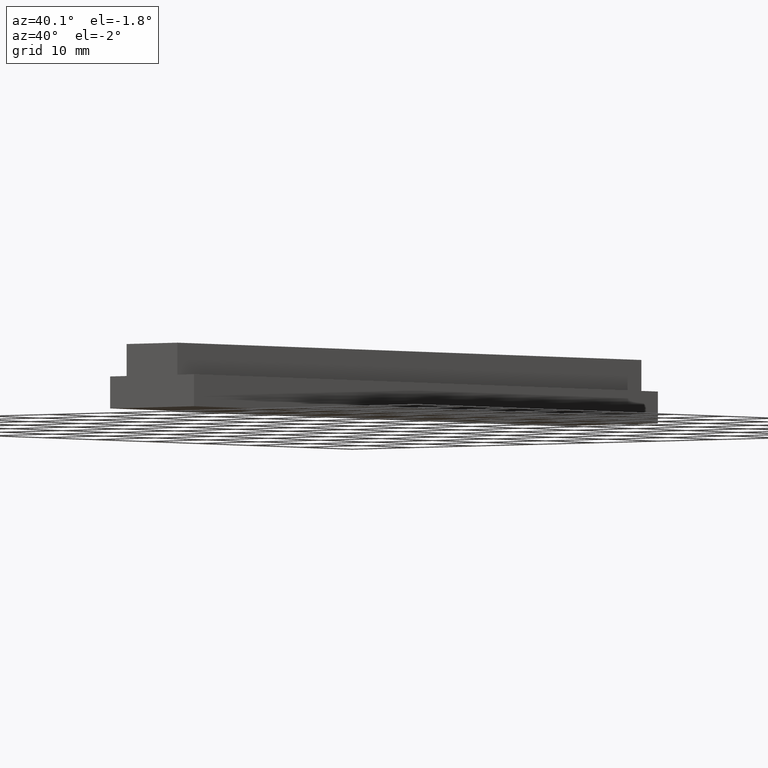
[diagram: clean part render]
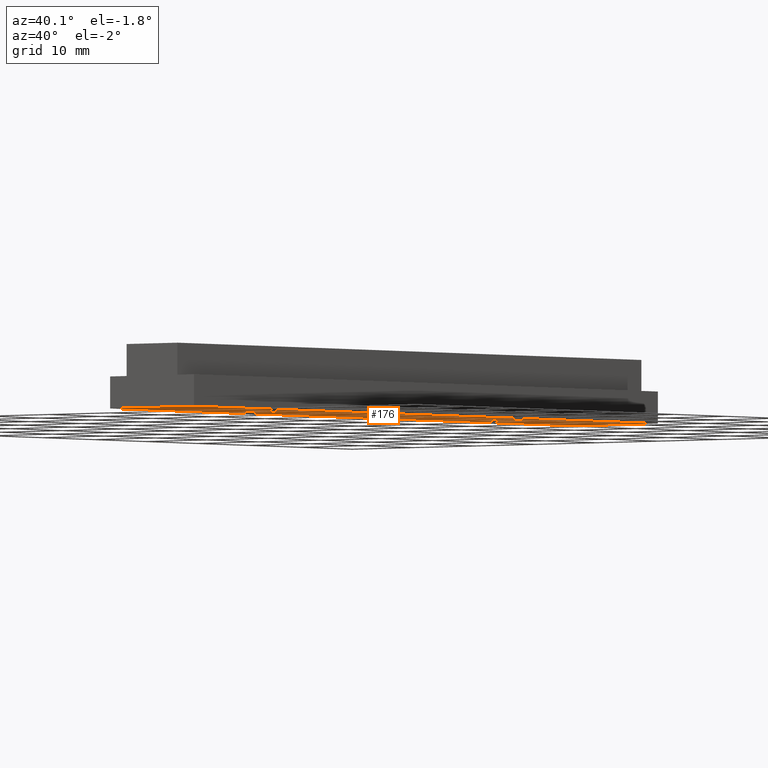
[diagram: same view with one face highlighted and labeled with its STEP entity id]
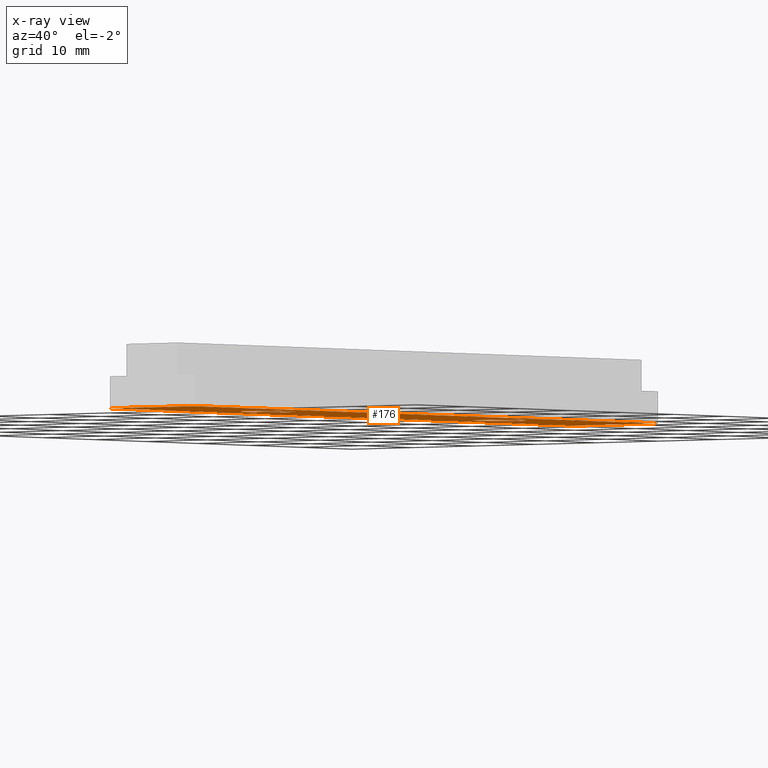
[diagram: x-ray of the same camera — body ghosted, the highlighted face saturated]
A machine part, auxiliary view. The second image highlights one B-rep face of the part: STEP entity #176.
The next image is the same camera in x-ray: the body ghosted, the highlighted face saturated — about 0% of this face is hidden behind the body in this view.
In plain terms, the highlighted planar face has unit normal (0, 0, -1).
Its self-contained STEP definition (entity closure, byte-faithful):
#18=CARTESIAN_POINT('',(0.0,19.100000000000001,-1.776357E-015));
#19=VERTEX_POINT('',#18);
#26=CARTESIAN_POINT('',(0.0,25.899999999999999,-1.776357E-015));
#27=VERTEX_POINT('',#26);
#28=CARTESIAN_POINT('',(0.0,22.500000000000000,-1.776357E-015));
#29=DIRECTION('',(0.0,-6.123234E-017,-1.0));
#30=DIRECTION('',(0.0,1.0,-6.123234E-017));
#31=AXIS2_PLACEMENT_3D('',#28,#29,#30);
#32=CIRCLE('',#31,3.400000000000001);
#33=EDGE_CURVE('',#19,#27,#32,.T.);
#60=CARTESIAN_POINT('',(0.0,64.100000000000023,-3.552714E-015));
#61=VERTEX_POINT('',#60);
#68=CARTESIAN_POINT('',(0.0,70.900000000000006,-3.552714E-015));
#69=VERTEX_POINT('',#68);
#70=CARTESIAN_POINT('',(0.0,67.500000000000000,-3.552714E-015));
#71=DIRECTION('',(0.0,-6.123234E-017,-1.0));
#72=DIRECTION('',(0.0,1.0,-6.123234E-017));
#73=AXIS2_PLACEMENT_3D('',#70,#71,#72);
#74=CIRCLE('',#73,3.400000000000001);
#75=EDGE_CURVE('',#61,#69,#74,.T.);
#93=CARTESIAN_POINT('',(-6.849999999999994,0.0,0.0));
#94=VERTEX_POINT('',#93);
#109=CARTESIAN_POINT('',(-6.849999999999994,90.0,-5.329071E-015));
#110=VERTEX_POINT('',#109);
#117=CARTESIAN_POINT('',(-6.849999999999994,90.0,-5.329071E-015));
#118=DIRECTION('',(0.0,-1.0,0.0));
#119=VECTOR('',#118,90.0);
#120=LINE('',#117,#119);
#121=EDGE_CURVE('',#110,#94,#120,.T.);
#126=CARTESIAN_POINT('',(-7.534999999999997,-4.499999999999999,0.0));
#127=DIRECTION('',(0.0,0.0,-1.0));
#128=DIRECTION('',(0.0,1.0,0.0));
#129=AXIS2_PLACEMENT_3D('',#126,#127,#128);
#130=PLANE('',#129);
#131=CARTESIAN_POINT('',(6.849999999999998,0.0,0.0));
#132=VERTEX_POINT('',#131);
#133=CARTESIAN_POINT('',(-6.849999999999994,0.0,0.0));
#134=DIRECTION('',(1.0,0.0,0.0));
#135=VECTOR('',#134,13.699999999999996);
#136=LINE('',#133,#135);
#137=EDGE_CURVE('',#94,#132,#136,.T.);
#138=ORIENTED_EDGE('',*,*,#137,.F.);
#139=ORIENTED_EDGE('',*,*,#121,.F.);
#140=CARTESIAN_POINT('',(6.849999999999998,90.0,-5.329071E-015));
#141=VERTEX_POINT('',#140);
#142=CARTESIAN_POINT('',(-6.849999999999994,90.0,-5.329071E-015));
#143=DIRECTION('',(1.0,0.0,0.0));
#144=VECTOR('',#143,13.699999999999996);
#145=LINE('',#142,#144);
#146=EDGE_CURVE('',#110,#141,#145,.T.);
#147=ORIENTED_EDGE('',*,*,#146,.T.);
#148=CARTESIAN_POINT('',(6.849999999999998,90.0,-5.329071E-015));
#149=DIRECTION('',(0.0,-1.0,0.0));
#150=VECTOR('',#149,90.0);
#151=LINE('',#148,#150);
#152=EDGE_CURVE('',#141,#132,#151,.T.);
#153=ORIENTED_EDGE('',*,*,#152,.T.);
#154=EDGE_LOOP('',(#138,#139,#147,#153));
#155=FACE_OUTER_BOUND('',#154,.T.);
#156=CARTESIAN_POINT('',(0.0,67.500000000000000,-3.552714E-015));
#157=DIRECTION('',(0.0,-6.123234E-017,-1.0));
#158=DIRECTION('',(0.0,1.0,-6.123234E-017));
#159=AXIS2_PLACEMENT_3D('',#156,#157,#158);
#160=CIRCLE('',#159,3.400000000000001);
#161=EDGE_CURVE('',#69,#61,#160,.T.);
#162=ORIENTED_EDGE('',*,*,#161,.F.);
#163=ORIENTED_EDGE('',*,*,#75,.F.);
#164=EDGE_LOOP('',(#162,#163));
#165=FACE_BOUND('',#164,.T.);
#166=CARTESIAN_POINT('',(0.0,22.500000000000000,-1.776357E-015));
#167=DIRECTION('',(0.0,-6.123234E-017,-1.0));
#168=DIRECTION('',(0.0,1.0,-6.123234E-017));
#169=AXIS2_PLACEMENT_3D('',#166,#167,#168);
#170=CIRCLE('',#169,3.400000000000001);
#171=EDGE_CURVE('',#27,#19,#170,.T.);
#172=ORIENTED_EDGE('',*,*,#171,.F.);
#173=ORIENTED_EDGE('',*,*,#33,.F.);
#174=EDGE_LOOP('',(#172,#173));
#175=FACE_BOUND('',#174,.T.);
#176=ADVANCED_FACE('',(#155,#165,#175),#130,.T.);